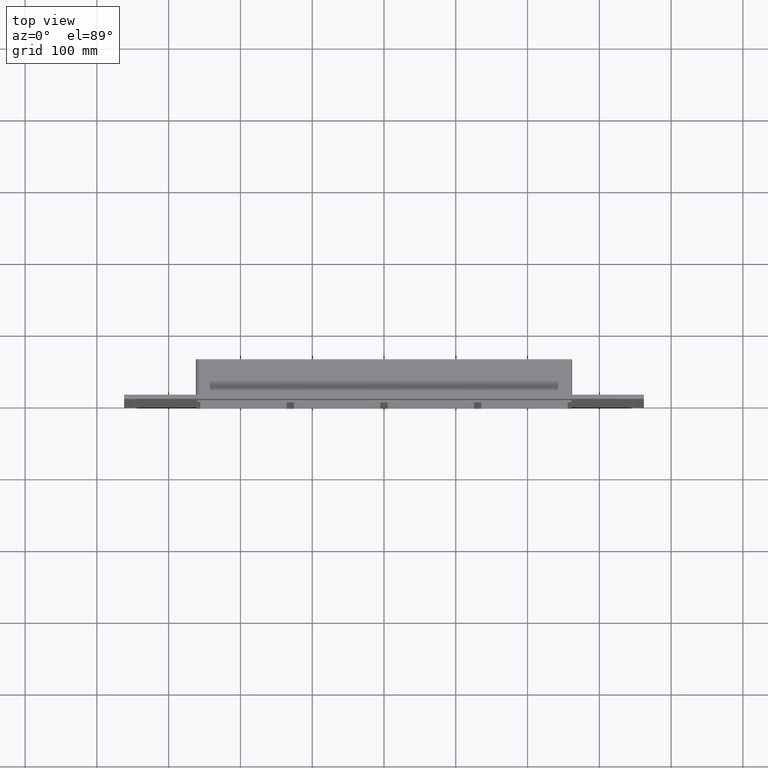
[diagram: clean part render]
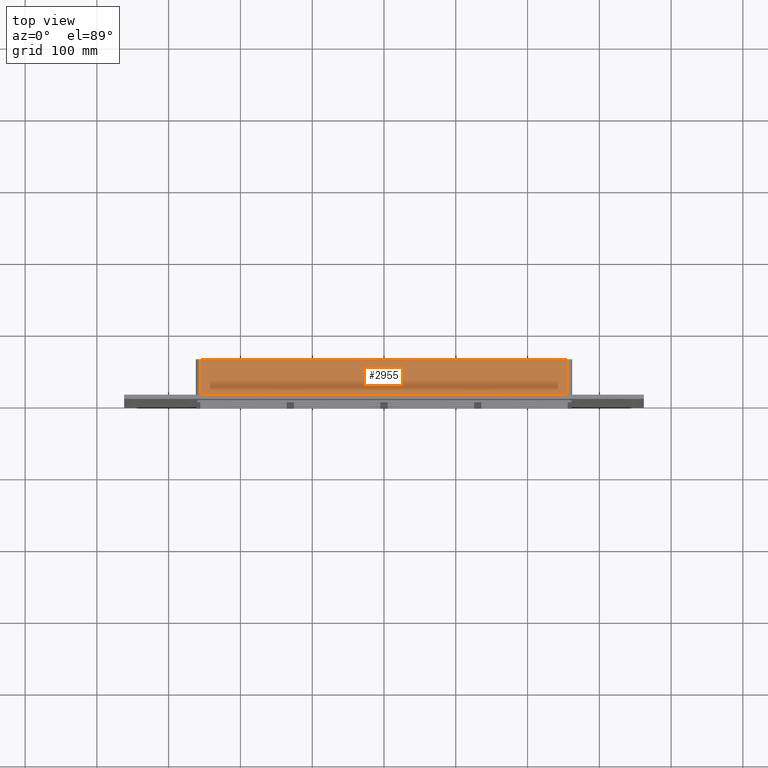
[diagram: same view with one face highlighted and labeled with its STEP entity id]
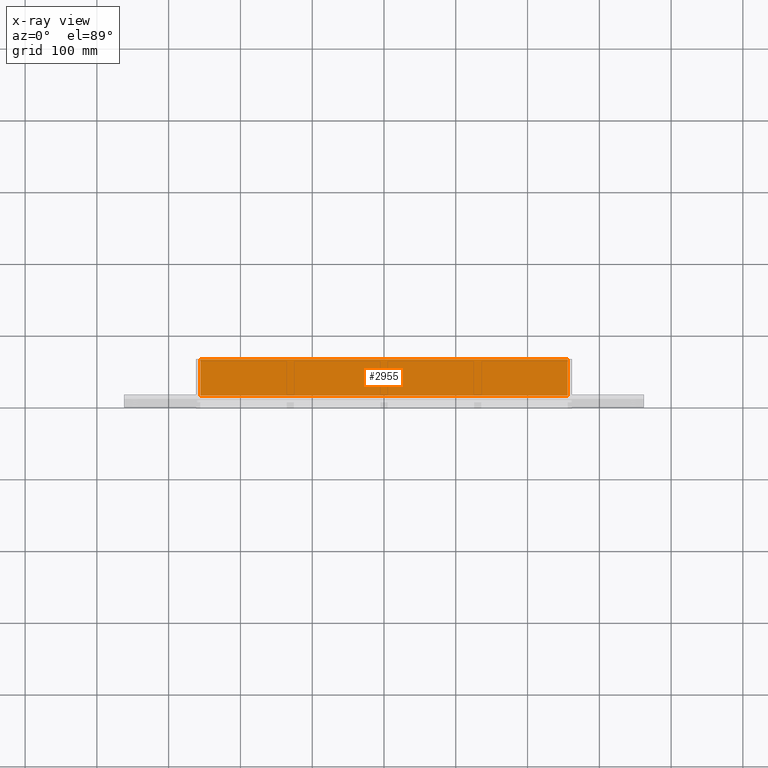
[diagram: x-ray of the same camera — body ghosted, the highlighted face saturated]
A machine part, top view. The second image highlights one B-rep face of the part: STEP entity #2955.
The next image is the same camera in x-ray: the body ghosted, the highlighted face saturated — about 0% of this face is hidden behind the body in this view.
In plain terms, the highlighted planar face has unit normal (0, 0, 1).
Its self-contained STEP definition (entity closure, byte-faithful):
#1187=CARTESIAN_POINT('',(-256.0,57.0,257.25));
#1188=VERTEX_POINT('',#1187);
#1196=CARTESIAN_POINT('',(256.0,57.0,257.25));
#1197=VERTEX_POINT('',#1196);
#1198=CARTESIAN_POINT('',(-256.0,57.0,257.25));
#1199=DIRECTION('',(1.0,0.0,0.0));
#1200=VECTOR('',#1199,512.0);
#1201=LINE('',#1198,#1200);
#1202=EDGE_CURVE('',#1188,#1197,#1201,.T.);
#2411=CARTESIAN_POINT('',(256.0,6.000000000000001,257.25));
#2412=VERTEX_POINT('',#2411);
#2420=CARTESIAN_POINT('',(-256.0,6.000000000000001,257.25));
#2421=VERTEX_POINT('',#2420);
#2422=CARTESIAN_POINT('',(-256.0,6.000000000000001,257.25));
#2423=DIRECTION('',(1.0,0.0,0.0));
#2424=VECTOR('',#2423,512.0);
#2425=LINE('',#2422,#2424);
#2426=EDGE_CURVE('',#2421,#2412,#2425,.T.);
#2719=CARTESIAN_POINT('',(256.0,57.0,257.25));
#2720=DIRECTION('',(0.0,-1.0,0.0));
#2721=VECTOR('',#2720,51.0);
#2722=LINE('',#2719,#2721);
#2723=EDGE_CURVE('',#1197,#2412,#2722,.T.);
#2933=CARTESIAN_POINT('',(-256.0,6.000000000000001,257.25));
#2934=DIRECTION('',(0.0,1.0,0.0));
#2935=VECTOR('',#2934,51.0);
#2936=LINE('',#2933,#2935);
#2937=EDGE_CURVE('',#2421,#1188,#2936,.T.);
#2944=CARTESIAN_POINT('',(-262.0,0.0,257.25));
#2945=DIRECTION('',(0.0,0.0,1.0));
#2946=DIRECTION('',(1.0,0.0,0.0));
#2947=AXIS2_PLACEMENT_3D('',#2944,#2945,#2946);
#2948=PLANE('',#2947);
#2949=ORIENTED_EDGE('',*,*,#2426,.T.);
#2950=ORIENTED_EDGE('',*,*,#2723,.F.);
#2951=ORIENTED_EDGE('',*,*,#1202,.F.);
#2952=ORIENTED_EDGE('',*,*,#2937,.F.);
#2953=EDGE_LOOP('',(#2949,#2950,#2951,#2952));
#2954=FACE_OUTER_BOUND('',#2953,.T.);
#2955=ADVANCED_FACE('',(#2954),#2948,.T.);